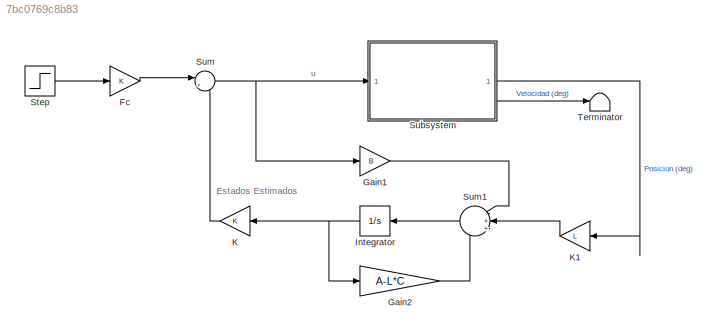
MODEL slx_7bc0769c8b83
KIND model
CONFIG AbsTol = auto
CONFIG EnableMultiTasking = off
CONFIG FixedStep = auto
CONFIG MaxStep = auto
CONFIG MinStep = auto
CONFIG RelTol = 1e-3
CONFIG SampleTimeConstraint = Unconstrained
CONFIG SolverName = VariableStepAuto
CONFIG StartTime = 0.0
CONFIG StopTime = 10.0
BLOCK [Gain] Fc
BLOCK [Gain] Gain1
  Gain = B
  Multiplication = Matrix(K*u)
BLOCK [Gain] Gain2
  Gain = A-L*C
  Multiplication = Matrix(K*u)
BLOCK [Integrator] Integrator
BLOCK [Gain] K
  Gain = K
  Multiplication = Matrix(K*u)
BLOCK [Gain] K1
  Gain = L
  Multiplication = Matrix(K*u)
BLOCK [Step] Step
  SampleTime = 0
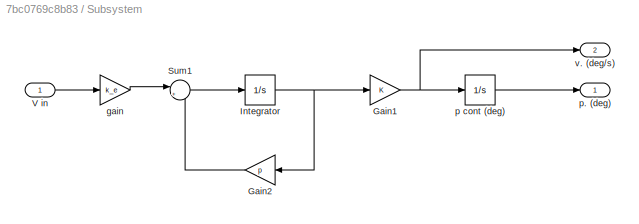
BLOCK [SubSystem] Subsystem
BLOCK [Gain] Subsystem/Gain1
BLOCK [Gain] Subsystem/Gain2
  Gain = p
BLOCK [Integrator] Subsystem/Integrator
BLOCK [Sum] Subsystem/Sum1
  Inputs = |++
BLOCK [Inport] Subsystem/V in
BLOCK [Gain] Subsystem/gain
  Gain = k_e
BLOCK [Integrator] Subsystem/p cont (deg)
BLOCK [Outport] Subsystem/p. (deg)
BLOCK [Outport] Subsystem/v. (deg//s)
  Port = 2
BLOCK [Sum] Sum
  Inputs = |+-
BLOCK [Sum] Sum1
  Inputs = |+++
BLOCK [Terminator] Terminator
ANNOTATION (root): Estados Estimados
LINE Fc:1 -> Sum:1
LINE Gain1:1 -> Sum1:1
LINE Gain2:1 -> Sum1:3
NET Integrator:1 -> Gain2:1, K:1
LINE K1:1 -> Sum1:2
LINE K:1 -> Sum:2
LINE Step:1 -> Fc:1
NET Subsystem/Gain1:1 -> Subsystem/p cont (deg):1, Subsystem/v. (deg//s):1
LINE Subsystem/Gain2:1 -> Subsystem/Sum1:2
NET Subsystem/Integrator:1 -> Subsystem/Gain1:1, Subsystem/Gain2:1
LINE Subsystem/Sum1:1 -> Subsystem/Integrator:1
LINE Subsystem/V in:1 -> Subsystem/gain:1
LINE Subsystem/gain:1 -> Subsystem/Sum1:1
LINE Subsystem/p cont (deg):1 -> Subsystem/p. (deg):1
LINE Subsystem:1 -> K1:1
LINE Subsystem:2 -> Terminator:1
LINE Sum1:1 -> Integrator:1
NET Sum:1 -> Gain1:1, Subsystem:1
note: NET lines group one-source signal fan-out (src -> all destinations, sorted); 1:1 wires keep LINE
